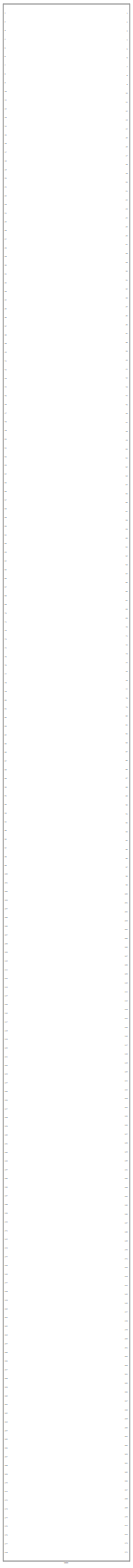
[diagram: root canvas - part 1/1, most of the canvas]
MODEL slx_20ed4016d905
KIND library
CONFIG AbsTol = auto
CONFIG FixedStep = auto
CONFIG MaxStep = auto
CONFIG MinStep = auto
CONFIG RelTol = 1e-3
CONFIG SampleTimeConstraint = Unconstrained
CONFIG Solver = ode45
CONFIG SolverMode = Auto
CONFIG SolverName = ode45
CONFIG StartTime = 0.0
CONFIG StopTime = 10.0
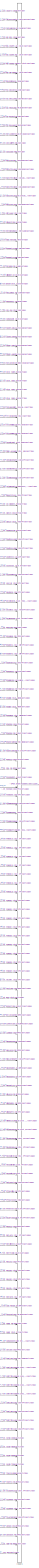
[diagram: cpc5 - part 1/18, left side, full height]
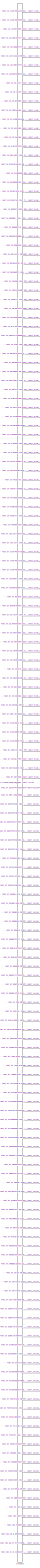
[diagram: cpc5 - part 2/18, right side, full height]
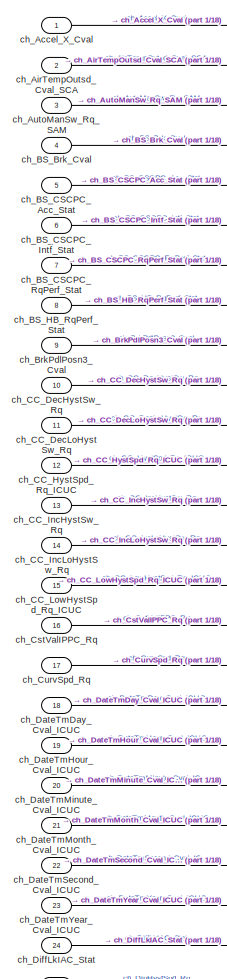
[diagram: cpc5 - part 3/18, top left region]
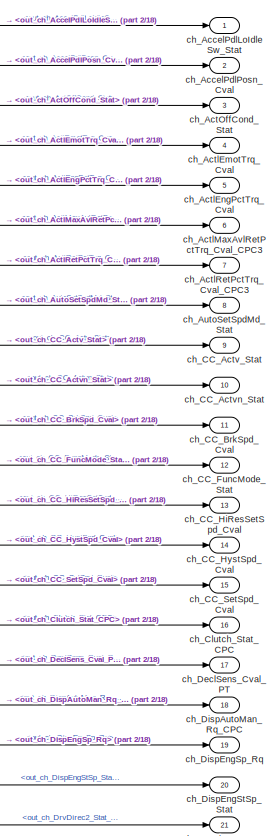
[diagram: cpc5 - part 4/18, top right region]
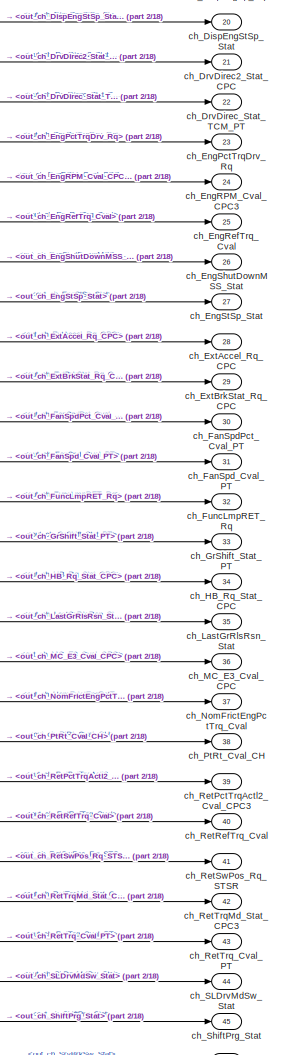
[diagram: cpc5 - part 5/18, top right region]
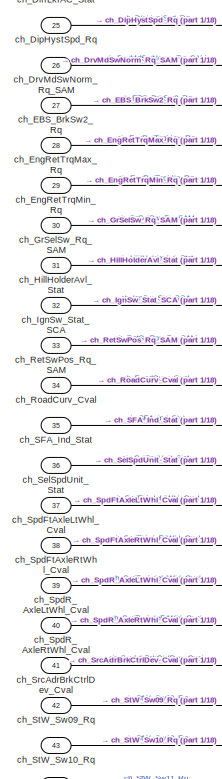
[diagram: cpc5 - part 6/18, top left region]
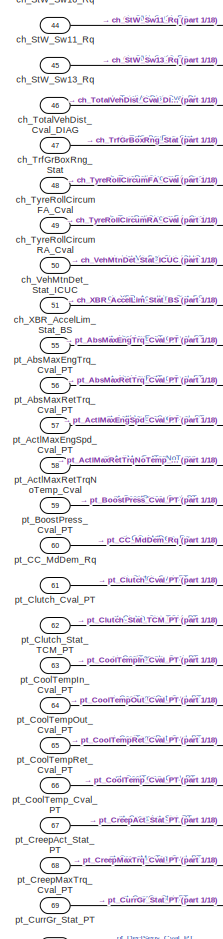
[diagram: cpc5 - part 7/18, top left region]
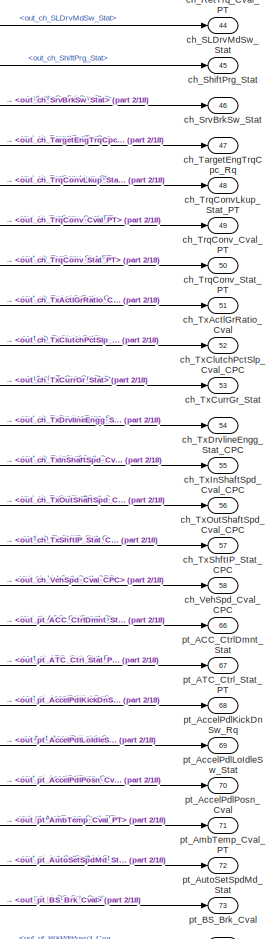
[diagram: cpc5 - part 8/18, top right region]
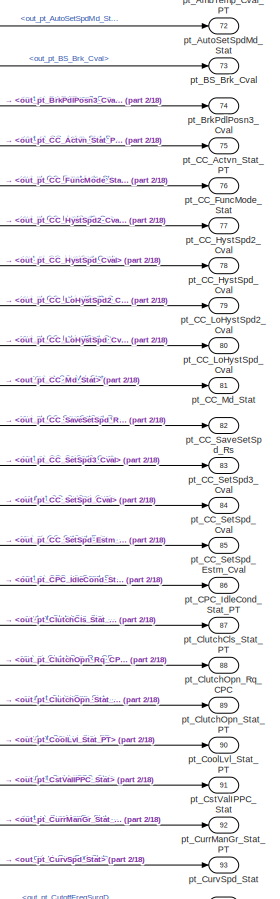
[diagram: cpc5 - part 9/18, middle right region]
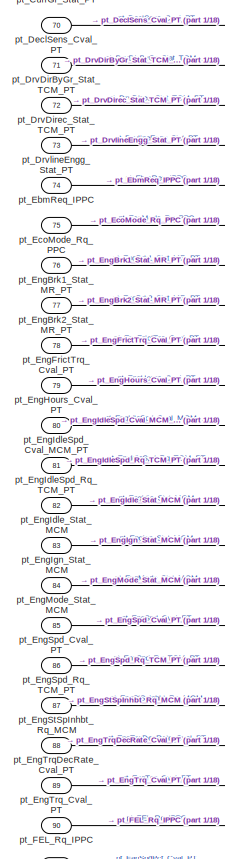
[diagram: cpc5 - part 10/18, middle left region]
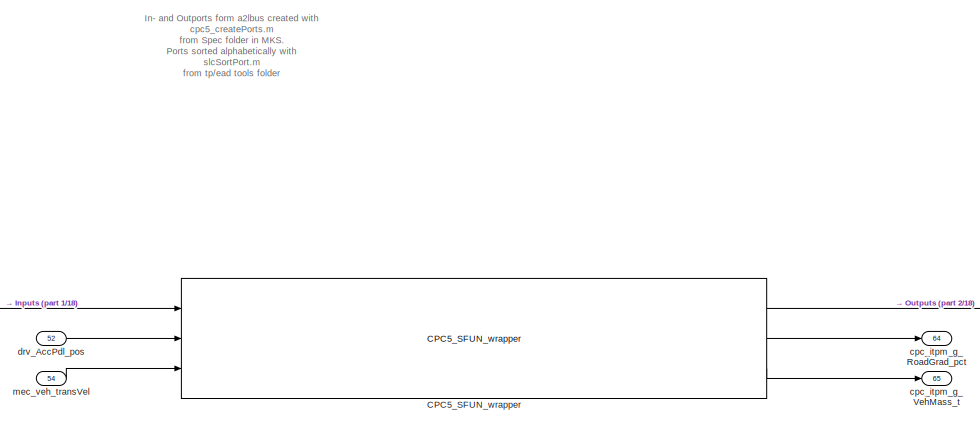
[diagram: cpc5 - part 11/18, central region]
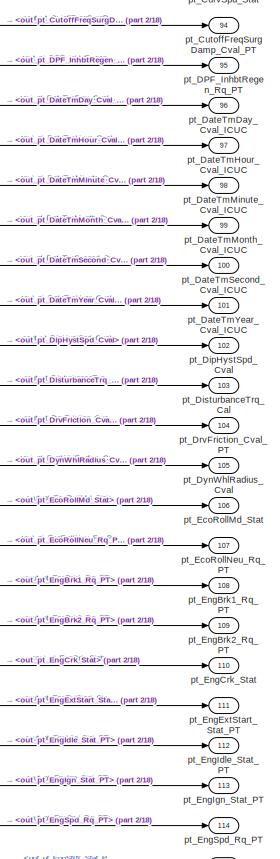
[diagram: cpc5 - part 12/18, middle right region]
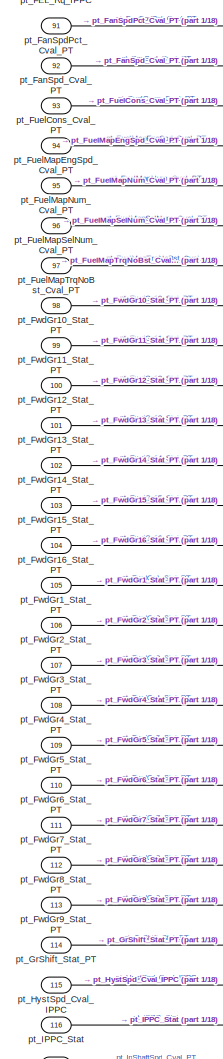
[diagram: cpc5 - part 13/18, middle left region]
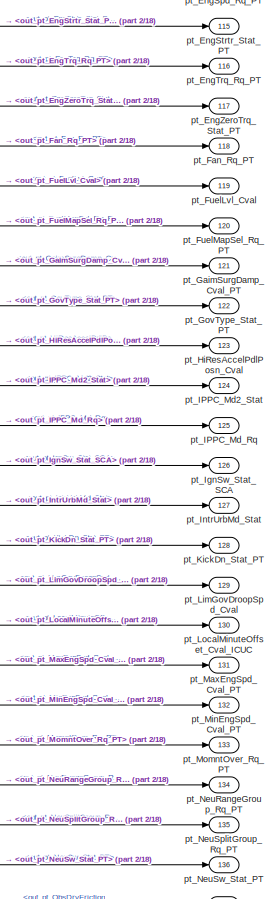
[diagram: cpc5 - part 14/18, bottom right region]
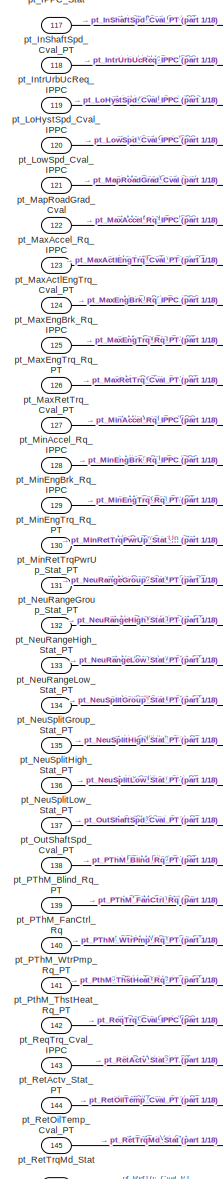
[diagram: cpc5 - part 15/18, bottom left region]
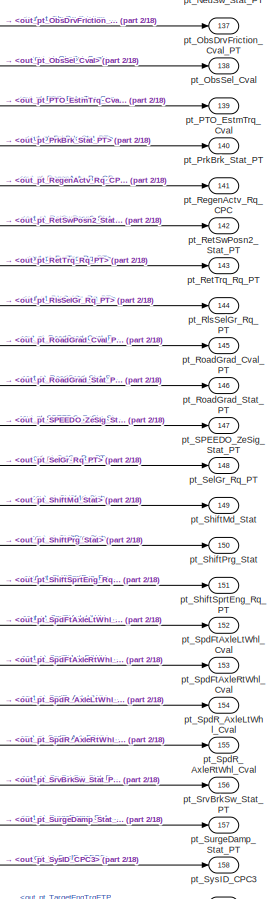
[diagram: cpc5 - part 16/18, bottom right region]
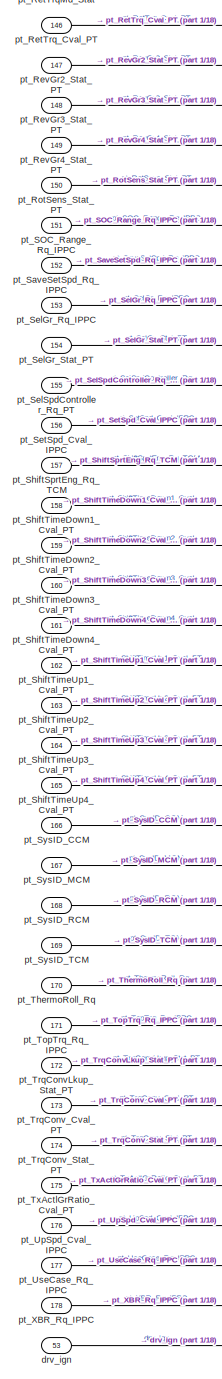
[diagram: cpc5 - part 17/18, bottom left region]
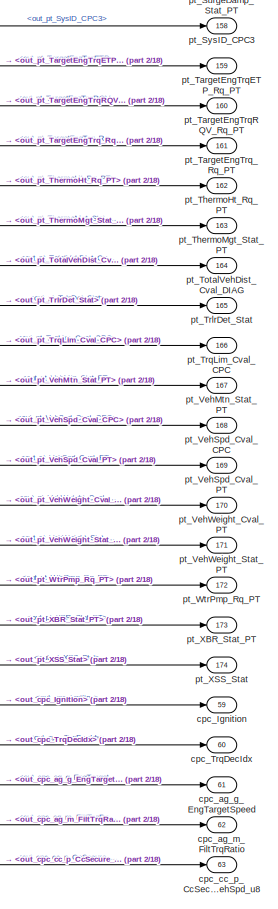
[diagram: cpc5 - part 18/18, bottom right region]
BLOCK [SubSystem] cpc5
  Ports = [178, 174]
  RequestExecContextInheritance = off
  Variant = off
BLOCK [Reference] cpc5/CPC5_SFUN_wrapper  REF=CPC5_SFUN_wrapper/CPC5_SFUN_wrapper
  Ports = [3, 3]
  SourceBlock = CPC5_SFUN_wrapper/CPC5_SFUN_wrapper
BLOCK [BusCreator] cpc5/Inputs
  InheritFromInputs = on
  Inputs = 176
  Ports = [176, 1]
BLOCK [BusSelector] cpc5/Outputs
  OutputSignals = out_ch_AccelPdlLoIdleSw_Stat,out_ch_AccelPdlPosn_Cval,out_ch_ActOffCond_Stat,out_ch_ActlEmotTrq_Cval,out_ch_ActlEngPctTrq_Cval,out_ch_ActlMaxAvlRetPctTrq_Cval_CPC3,out_ch_ActlRetPctTrq_Cval_CPC3,out_ch_AutoSetSpdMd_Stat,out_ch_CC_Actv_Stat,out_ch_CC_Actvn_Stat,out_ch_CC_BrkSpd_Cval,out_ch_CC_FuncMode_Stat,out_ch_CC_HiResSetSpd_Cval,out_ch_CC_HystSpd_Cval,out_ch_CC_SetSpd_Cval,out_ch_Clutch_Stat_CP...<+3794ch>
  Ports = [1, 172]
BLOCK [Outport] cpc5/ch_AccelPdlLoIdleSw_Stat
  IconDisplay = Port number
BLOCK [Outport] cpc5/ch_AccelPdlPosn_Cval
  IconDisplay = Port number
  Port = 2
BLOCK [Inport] cpc5/ch_Accel_X_Cval
  IconDisplay = Port number
BLOCK [Outport] cpc5/ch_ActOffCond_Stat
  IconDisplay = Port number
  Port = 3
BLOCK [Outport] cpc5/ch_ActlEmotTrq_Cval
  IconDisplay = Port number
  Port = 4
BLOCK [Outport] cpc5/ch_ActlEngPctTrq_Cval
  IconDisplay = Port number
  Port = 5
BLOCK [Outport] cpc5/ch_ActlMaxAvlRetPctTrq_Cval_CPC3
  IconDisplay = Port number
  Port = 6
BLOCK [Outport] cpc5/ch_ActlRetPctTrq_Cval_CPC3
  IconDisplay = Port number
  Port = 7
BLOCK [Inport] cpc5/ch_AirTempOutsd_Cval_SCA
  IconDisplay = Port number
  Port = 2
BLOCK [Inport] cpc5/ch_AutoManSw_Rq_SAM
  IconDisplay = Port number
  Port = 3
BLOCK [Outport] cpc5/ch_AutoSetSpdMd_Stat
  IconDisplay = Port number
  Port = 8
BLOCK [Inport] cpc5/ch_BS_Brk_Cval
  IconDisplay = Port number
  Port = 4
BLOCK [Inport] cpc5/ch_BS_CSCPC_Acc_Stat
  IconDisplay = Port number
  Port = 5
BLOCK [Inport] cpc5/ch_BS_CSCPC_Intf_Stat
  IconDisplay = Port number
  Port = 6
BLOCK [Inport] cpc5/ch_BS_CSCPC_RqPerf_Stat
  IconDisplay = Port number
  Port = 7
BLOCK [Inport] cpc5/ch_BS_HB_RqPerf_Stat
  IconDisplay = Port number
  Port = 8
BLOCK [Inport] cpc5/ch_BrkPdlPosn3_Cval
  IconDisplay = Port number
  Port = 9
BLOCK [Outport] cpc5/ch_CC_Actv_Stat
  IconDisplay = Port number
  Port = 9
BLOCK [Outport] cpc5/ch_CC_Actvn_Stat
  IconDisplay = Port number
  Port = 10
BLOCK [Outport] cpc5/ch_CC_BrkSpd_Cval
  IconDisplay = Port number
  Port = 11
BLOCK [Inport] cpc5/ch_CC_DecHystSw_Rq
  IconDisplay = Port number
  Port = 10
BLOCK [Inport] cpc5/ch_CC_DecLoHystSw_Rq
  IconDisplay = Port number
  Port = 11
BLOCK [Outport] cpc5/ch_CC_FuncMode_Stat
  IconDisplay = Port number
  Port = 12
BLOCK [Outport] cpc5/ch_CC_HiResSetSpd_Cval
  IconDisplay = Port number
  Port = 13
BLOCK [Outport] cpc5/ch_CC_HystSpd_Cval
  IconDisplay = Port number
  Port = 14
BLOCK [Inport] cpc5/ch_CC_HystSpd_Rq_ICUC
  IconDisplay = Port number
  Port = 12
BLOCK [Inport] cpc5/ch_CC_IncHystSw_Rq
  IconDisplay = Port number
  Port = 13
BLOCK [Inport] cpc5/ch_CC_IncLoHystSw_Rq
  IconDisplay = Port number
  Port = 14
BLOCK [Inport] cpc5/ch_CC_LowHystSpd_Rq_ICUC
  IconDisplay = Port number
  Port = 15
BLOCK [Outport] cpc5/ch_CC_SetSpd_Cval
  IconDisplay = Port number
  Port = 15
BLOCK [Outport] cpc5/ch_Clutch_Stat_CPC
  IconDisplay = Port number
  Port = 16
BLOCK [Inport] cpc5/ch_CstValIPPC_Rq
  IconDisplay = Port number
  Port = 16
BLOCK [Inport] cpc5/ch_CurvSpd_Rq
  IconDisplay = Port number
  Port = 17
BLOCK [Inport] cpc5/ch_DateTmDay_Cval_ICUC
  IconDisplay = Port number
  Port = 18
BLOCK [Inport] cpc5/ch_DateTmHour_Cval_ICUC
  IconDisplay = Port number
  Port = 19
BLOCK [Inport] cpc5/ch_DateTmMinute_Cval_ICUC
  IconDisplay = Port number
  Port = 20
BLOCK [Inport] cpc5/ch_DateTmMonth_Cval_ICUC
  IconDisplay = Port number
  Port = 21
BLOCK [Inport] cpc5/ch_DateTmSecond_Cval_ICUC
  IconDisplay = Port number
  Port = 22
BLOCK [Inport] cpc5/ch_DateTmYear_Cval_ICUC
  IconDisplay = Port number
  Port = 23
BLOCK [Outport] cpc5/ch_DeclSens_Cval_PT
  IconDisplay = Port number
  Port = 17
BLOCK [Inport] cpc5/ch_DiffLkIAC_Stat
  IconDisplay = Port number
  Port = 24
BLOCK [Inport] cpc5/ch_DipHystSpd_Rq
  IconDisplay = Port number
  Port = 25
BLOCK [Outport] cpc5/ch_DispAutoMan_Rq_CPC
  IconDisplay = Port number
  Port = 18
BLOCK [Outport] cpc5/ch_DispEngSp_Rq
  IconDisplay = Port number
  Port = 19
BLOCK [Outport] cpc5/ch_DispEngStSp_Stat
  IconDisplay = Port number
  Port = 20
BLOCK [Outport] cpc5/ch_DrvDirec2_Stat_CPC
  IconDisplay = Port number
  Port = 21
BLOCK [Outport] cpc5/ch_DrvDirec_Stat_TCM_PT
  IconDisplay = Port number
  Port = 22
BLOCK [Inport] cpc5/ch_DrvMdSwNorm_Rq_SAM
  IconDisplay = Port number
  Port = 26
BLOCK [Inport] cpc5/ch_EBS_BrkSw2_Rq
  IconDisplay = Port number
  Port = 27
BLOCK [Outport] cpc5/ch_EngPctTrqDrv_Rq
  IconDisplay = Port number
  Port = 23
BLOCK [Outport] cpc5/ch_EngRPM_Cval_CPC3
  IconDisplay = Port number
  Port = 24
BLOCK [Outport] cpc5/ch_EngRefTrq_Cval
  IconDisplay = Port number
  Port = 25
BLOCK [Inport] cpc5/ch_EngRetTrqMax_Rq
  IconDisplay = Port number
  Port = 28
BLOCK [Inport] cpc5/ch_EngRetTrqMin_Rq
  IconDisplay = Port number
  Port = 29
BLOCK [Outport] cpc5/ch_EngShutDownMSS_Stat
  IconDisplay = Port number
  Port = 26
BLOCK [Outport] cpc5/ch_EngStSp_Stat
  IconDisplay = Port number
  Port = 27
BLOCK [Outport] cpc5/ch_ExtAccel_Rq_CPC
  IconDisplay = Port number
  Port = 28
BLOCK [Outport] cpc5/ch_ExtBrkStat_Rq_CPC
  IconDisplay = Port number
  Port = 29
BLOCK [Outport] cpc5/ch_FanSpdPct_Cval_PT
  IconDisplay = Port number
  Port = 30
BLOCK [Outport] cpc5/ch_FanSpd_Cval_PT
  IconDisplay = Port number
  Port = 31
BLOCK [Outport] cpc5/ch_FuncLmpRET_Rq
  IconDisplay = Port number
  Port = 32
BLOCK [Inport] cpc5/ch_GrSelSw_Rq_SAM
  IconDisplay = Port number
  Port = 30
BLOCK [Outport] cpc5/ch_GrShift_Stat_PT
  IconDisplay = Port number
  Port = 33
BLOCK [Outport] cpc5/ch_HB_Rq_Stat_CPC
  IconDisplay = Port number
  Port = 34
BLOCK [Inport] cpc5/ch_HillHolderAvl_Stat
  IconDisplay = Port number
  Port = 31
BLOCK [Inport] cpc5/ch_IgnSw_Stat_SCA
  IconDisplay = Port number
  Port = 32
BLOCK [Outport] cpc5/ch_LastGrRlsRsn_Stat
  IconDisplay = Port number
  Port = 35
BLOCK [Outport] cpc5/ch_MC_E3_Cval_CPC
  IconDisplay = Port number
  Port = 36
BLOCK [Outport] cpc5/ch_NomFrictEngPctTrq_Cval
  IconDisplay = Port number
  Port = 37
BLOCK [Outport] cpc5/ch_PtRt_Cval_CH
  IconDisplay = Port number
  Port = 38
BLOCK [Outport] cpc5/ch_RetPctTrqActl2_Cval_CPC3
  IconDisplay = Port number
  Port = 39
BLOCK [Outport] cpc5/ch_RetRefTrq_Cval
  IconDisplay = Port number
  Port = 40
BLOCK [Inport] cpc5/ch_RetSwPos_Rq_SAM
  IconDisplay = Port number
  Port = 33
BLOCK [Outport] cpc5/ch_RetSwPos_Rq_STSR
  IconDisplay = Port number
  Port = 41
BLOCK [Outport] cpc5/ch_RetTrqMd_Stat_CPC3
  IconDisplay = Port number
  Port = 42
BLOCK [Outport] cpc5/ch_RetTrq_Cval_PT
  IconDisplay = Port number
  Port = 43
BLOCK [Inport] cpc5/ch_RoadCurv_Cval
  IconDisplay = Port number
  Port = 34
BLOCK [Inport] cpc5/ch_SFA_Ind_Stat
  IconDisplay = Port number
  Port = 35
BLOCK [Outport] cpc5/ch_SLDrvMdSw_Stat
  IconDisplay = Port number
  Port = 44
BLOCK [Inport] cpc5/ch_SelSpdUnit_Stat
  IconDisplay = Port number
  Port = 36
BLOCK [Outport] cpc5/ch_ShiftPrg_Stat
  IconDisplay = Port number
  Port = 45
BLOCK [Inport] cpc5/ch_SpdFtAxleLtWhl_Cval
  IconDisplay = Port number
  Port = 37
BLOCK [Inport] cpc5/ch_SpdFtAxleRtWhl_Cval
  IconDisplay = Port number
  Port = 38
BLOCK [Inport] cpc5/ch_SpdR_AxleLtWhl_Cval
  IconDisplay = Port number
  Port = 39
BLOCK [Inport] cpc5/ch_SpdR_AxleRtWhl_Cval
  IconDisplay = Port number
  Port = 40
BLOCK [Inport] cpc5/ch_SrcAdrBrkCtrlDev_Cval
  IconDisplay = Port number
  Port = 41
BLOCK [Outport] cpc5/ch_SrvBrkSw_Stat
  IconDisplay = Port number
  Port = 46
BLOCK [Inport] cpc5/ch_StW_Sw09_Rq
  IconDisplay = Port number
  Port = 42
BLOCK [Inport] cpc5/ch_StW_Sw10_Rq
  IconDisplay = Port number
  Port = 43
BLOCK [Inport] cpc5/ch_StW_Sw11_Rq
  IconDisplay = Port number
  Port = 44
BLOCK [Inport] cpc5/ch_StW_Sw13_Rq
  IconDisplay = Port number
  Port = 45
BLOCK [Outport] cpc5/ch_TargetEngTrqCpc_Rq
  IconDisplay = Port number
  Port = 47
BLOCK [Inport] cpc5/ch_TotalVehDist_Cval_DIAG
  IconDisplay = Port number
  Port = 46
BLOCK [Inport] cpc5/ch_TrfGrBoxRng_Stat
  IconDisplay = Port number
  Port = 47
BLOCK [Outport] cpc5/ch_TrqConvLkup_Stat_PT
  IconDisplay = Port number
  Port = 48
BLOCK [Outport] cpc5/ch_TrqConv_Cval_PT
  IconDisplay = Port number
  Port = 49
BLOCK [Outport] cpc5/ch_TrqConv_Stat_PT
  IconDisplay = Port number
  Port = 50
BLOCK [Outport] cpc5/ch_TxActlGrRatio_Cval
  IconDisplay = Port number
  Port = 51
BLOCK [Outport] cpc5/ch_TxClutchPctSlp_Cval_CPC
  IconDisplay = Port number
  Port = 52
BLOCK [Outport] cpc5/ch_TxCurrGr_Stat
  IconDisplay = Port number
  Port = 53
BLOCK [Outport] cpc5/ch_TxDrvlineEngg_Stat_CPC
  IconDisplay = Port number
  Port = 54
BLOCK [Outport] cpc5/ch_TxInShaftSpd_Cval_CPC
  IconDisplay = Port number
  Port = 55
BLOCK [Outport] cpc5/ch_TxOutShaftSpd_Cval_CPC
  IconDisplay = Port number
  Port = 56
BLOCK [Outport] cpc5/ch_TxShftIP_Stat_CPC
  IconDisplay = Port number
  Port = 57
BLOCK [Inport] cpc5/ch_TyreRollCircumFA_Cval
  IconDisplay = Port number
  Port = 48
BLOCK [Inport] cpc5/ch_TyreRollCircumRA_Cval
  IconDisplay = Port number
  Port = 49
BLOCK [Inport] cpc5/ch_VehMtnDet_Stat_ICUC
  IconDisplay = Port number
  Port = 50
BLOCK [Outport] cpc5/ch_VehSpd_Cval_CPC
  IconDisplay = Port number
  Port = 58
BLOCK [Inport] cpc5/ch_XBR_AccelLim_Stat_BS
  IconDisplay = Port number
  Port = 51
BLOCK [Outport] cpc5/cpc_Ignition
  IconDisplay = Port number
  Port = 59
BLOCK [Outport] cpc5/cpc_TrqDecIdx
  IconDisplay = Port number
  Port = 60
BLOCK [Outport] cpc5/cpc_ag_g_EngTargetSpeed
  IconDisplay = Port number
  Port = 61
BLOCK [Outport] cpc5/cpc_ag_m_FiltTrqRatio
  IconDisplay = Port number
  Port = 62
BLOCK [Outport] cpc5/cpc_cc_p_CcSecure_LowSwitchOnVehSpd_u8
  IconDisplay = Port number
  Port = 63
BLOCK [Outport] cpc5/cpc_itpm_g_RoadGrad_pct
  IconDisplay = Port number
  Port = 64
BLOCK [Outport] cpc5/cpc_itpm_g_VehMass_t
  IconDisplay = Port number
  Port = 65
BLOCK [Inport] cpc5/drv_AccPdl_pos
  IconDisplay = Port number
  Port = 52
BLOCK [Inport] cpc5/drv_ign
  IconDisplay = Port number
  Port = 53
BLOCK [Inport] cpc5/mec_veh_transVel
  IconDisplay = Port number
  Port = 54
BLOCK [Outport] cpc5/pt_ACC_CtrlDmnt_Stat
  IconDisplay = Port number
  Port = 66
BLOCK [Outport] cpc5/pt_ATC_Ctrl_Stat_PT
  IconDisplay = Port number
  Port = 67
BLOCK [Inport] cpc5/pt_AbsMaxEngTrq_Cval_PT
  IconDisplay = Port number
  Port = 55
BLOCK [Inport] cpc5/pt_AbsMaxRetTrq_Cval_PT
  IconDisplay = Port number
  Port = 56
BLOCK [Outport] cpc5/pt_AccelPdlKickDnSw_Rq
  IconDisplay = Port number
  Port = 68
BLOCK [Outport] cpc5/pt_AccelPdlLoIdleSw_Stat
  IconDisplay = Port number
  Port = 69
BLOCK [Outport] cpc5/pt_AccelPdlPosn_Cval
  IconDisplay = Port number
  Port = 70
BLOCK [Inport] cpc5/pt_ActlMaxEngSpd_Cval_PT
  IconDisplay = Port number
  Port = 57
BLOCK [Inport] cpc5/pt_ActlMaxRetTrqNoTemp_Cval
  IconDisplay = Port number
  Port = 58
BLOCK [Outport] cpc5/pt_AmbTemp_Cval_PT
  IconDisplay = Port number
  Port = 71
BLOCK [Outport] cpc5/pt_AutoSetSpdMd_Stat
  IconDisplay = Port number
  Port = 72
BLOCK [Outport] cpc5/pt_BS_Brk_Cval
  IconDisplay = Port number
  Port = 73
BLOCK [Inport] cpc5/pt_BoostPress_Cval_PT
  IconDisplay = Port number
  Port = 59
BLOCK [Outport] cpc5/pt_BrkPdlPosn3_Cval
  IconDisplay = Port number
  Port = 74
BLOCK [Outport] cpc5/pt_CC_Actvn_Stat_PT
  IconDisplay = Port number
  Port = 75
BLOCK [Outport] cpc5/pt_CC_FuncMode_Stat
  IconDisplay = Port number
  Port = 76
BLOCK [Outport] cpc5/pt_CC_HystSpd2_Cval
  IconDisplay = Port number
  Port = 77
BLOCK [Outport] cpc5/pt_CC_HystSpd_Cval
  IconDisplay = Port number
  Port = 78
BLOCK [Outport] cpc5/pt_CC_LoHystSpd2_Cval
  IconDisplay = Port number
  Port = 79
BLOCK [Outport] cpc5/pt_CC_LoHystSpd_Cval
  IconDisplay = Port number
  Port = 80
BLOCK [Inport] cpc5/pt_CC_MdDem_Rq
  IconDisplay = Port number
  Port = 60
BLOCK [Outport] cpc5/pt_CC_Md_Stat
  IconDisplay = Port number
  Port = 81
BLOCK [Outport] cpc5/pt_CC_SaveSetSpd_Rs
  IconDisplay = Port number
  Port = 82
BLOCK [Outport] cpc5/pt_CC_SetSpd3_Cval
  IconDisplay = Port number
  Port = 83
BLOCK [Outport] cpc5/pt_CC_SetSpd_Cval
  IconDisplay = Port number
  Port = 84
BLOCK [Outport] cpc5/pt_CC_SetSpd_Estm_Cval
  IconDisplay = Port number
  Port = 85
BLOCK [Outport] cpc5/pt_CPC_IdleCond_Stat_PT
  IconDisplay = Port number
  Port = 86
BLOCK [Outport] cpc5/pt_ClutchCls_Stat_PT
  IconDisplay = Port number
  Port = 87
BLOCK [Outport] cpc5/pt_ClutchOpn_Rq_CPC
  IconDisplay = Port number
  Port = 88
BLOCK [Outport] cpc5/pt_ClutchOpn_Stat_PT
  IconDisplay = Port number
  Port = 89
BLOCK [Inport] cpc5/pt_Clutch_Cval_PT
  IconDisplay = Port number
  Port = 61
BLOCK [Inport] cpc5/pt_Clutch_Stat_TCM_PT
  IconDisplay = Port number
  Port = 62
BLOCK [Outport] cpc5/pt_CoolLvl_Stat_PT
  IconDisplay = Port number
  Port = 90
BLOCK [Inport] cpc5/pt_CoolTempIn_Cval_PT
  IconDisplay = Port number
  Port = 63
BLOCK [Inport] cpc5/pt_CoolTempOut_Cval_PT
  IconDisplay = Port number
  Port = 64
BLOCK [Inport] cpc5/pt_CoolTempRet_Cval_PT
  IconDisplay = Port number
  Port = 65
BLOCK [Inport] cpc5/pt_CoolTemp_Cval_PT
  IconDisplay = Port number
  Port = 66
BLOCK [Inport] cpc5/pt_CreepAct_Stat_PT
  IconDisplay = Port number
  Port = 67
BLOCK [Inport] cpc5/pt_CreepMaxTrq_Cval_PT
  IconDisplay = Port number
  Port = 68
BLOCK [Outport] cpc5/pt_CstValIPPC_Stat
  IconDisplay = Port number
  Port = 91
BLOCK [Inport] cpc5/pt_CurrGr_Stat_PT
  IconDisplay = Port number
  Port = 69
BLOCK [Outport] cpc5/pt_CurrManGr_Stat_PT
  IconDisplay = Port number
  Port = 92
BLOCK [Outport] cpc5/pt_CurvSpd_Stat
  IconDisplay = Port number
  Port = 93
BLOCK [Outport] cpc5/pt_CutoffFreqSurgDamp_Cval_PT
  IconDisplay = Port number
  Port = 94
BLOCK [Outport] cpc5/pt_DPF_InhbtRegen_Rq_PT
  IconDisplay = Port number
  Port = 95
BLOCK [Outport] cpc5/pt_DateTmDay_Cval_ICUC
  IconDisplay = Port number
  Port = 96
BLOCK [Outport] cpc5/pt_DateTmHour_Cval_ICUC
  IconDisplay = Port number
  Port = 97
BLOCK [Outport] cpc5/pt_DateTmMinute_Cval_ICUC
  IconDisplay = Port number
  Port = 98
BLOCK [Outport] cpc5/pt_DateTmMonth_Cval_ICUC
  IconDisplay = Port number
  Port = 99
BLOCK [Outport] cpc5/pt_DateTmSecond_Cval_ICUC
  IconDisplay = Port number
  Port = 100
BLOCK [Outport] cpc5/pt_DateTmYear_Cval_ICUC
  IconDisplay = Port number
  Port = 101
BLOCK [Inport] cpc5/pt_DeclSens_Cval_PT
  IconDisplay = Port number
  Port = 70
BLOCK [Outport] cpc5/pt_DipHystSpd_Cval
  IconDisplay = Port number
  Port = 102
BLOCK [Outport] cpc5/pt_DisturbanceTrq_Cal
  IconDisplay = Port number
  Port = 103
BLOCK [Inport] cpc5/pt_DrvDirByGr_Stat_TCM_PT
  IconDisplay = Port number
  Port = 71
BLOCK [Inport] cpc5/pt_DrvDirec_Stat_TCM_PT
  IconDisplay = Port number
  Port = 72
BLOCK [Outport] cpc5/pt_DrvFriction_Cval_PT
  IconDisplay = Port number
  Port = 104
BLOCK [Inport] cpc5/pt_DrvlineEngg_Stat_PT
  IconDisplay = Port number
  Port = 73
BLOCK [Outport] cpc5/pt_DynWhlRadius_Cval
  IconDisplay = Port number
  Port = 105
BLOCK [Inport] cpc5/pt_EbmReq_IPPC
  IconDisplay = Port number
  Port = 74
BLOCK [Inport] cpc5/pt_EcoMode_Rq_PPC
  IconDisplay = Port number
  Port = 75
BLOCK [Outport] cpc5/pt_EcoRollMd_Stat
  IconDisplay = Port number
  Port = 106
BLOCK [Outport] cpc5/pt_EcoRollNeu_Rq_PT
  IconDisplay = Port number
  Port = 107
BLOCK [Outport] cpc5/pt_EngBrk1_Rq_PT
  IconDisplay = Port number
  Port = 108
BLOCK [Inport] cpc5/pt_EngBrk1_Stat_MR_PT
  IconDisplay = Port number
  Port = 76
BLOCK [Outport] cpc5/pt_EngBrk2_Rq_PT
  IconDisplay = Port number
  Port = 109
BLOCK [Inport] cpc5/pt_EngBrk2_Stat_MR_PT
  IconDisplay = Port number
  Port = 77
BLOCK [Outport] cpc5/pt_EngCrk_Stat
  IconDisplay = Port number
  Port = 110
BLOCK [Outport] cpc5/pt_EngExtStart_Stat_PT
  IconDisplay = Port number
  Port = 111
BLOCK [Inport] cpc5/pt_EngFrictTrq_Cval_PT
  IconDisplay = Port number
  Port = 78
BLOCK [Inport] cpc5/pt_EngHours_Cval_PT
  IconDisplay = Port number
  Port = 79
BLOCK [Inport] cpc5/pt_EngIdleSpd_Cval_MCM_PT
  IconDisplay = Port number
  Port = 80
BLOCK [Inport] cpc5/pt_EngIdleSpd_Rq_TCM_PT
  IconDisplay = Port number
  Port = 81
BLOCK [Inport] cpc5/pt_EngIdle_Stat_MCM
  IconDisplay = Port number
  Port = 82
BLOCK [Outport] cpc5/pt_EngIdle_Stat_PT
  IconDisplay = Port number
  Port = 112
BLOCK [Inport] cpc5/pt_EngIgn_Stat_MCM
  IconDisplay = Port number
  Port = 83
BLOCK [Outport] cpc5/pt_EngIgn_Stat_PT
  IconDisplay = Port number
  Port = 113
BLOCK [Inport] cpc5/pt_EngMode_Stat_MCM
  IconDisplay = Port number
  Port = 84
BLOCK [Inport] cpc5/pt_EngSpd_Cval_PT
  IconDisplay = Port number
  Port = 85
BLOCK [Outport] cpc5/pt_EngSpd_Rq_PT
  IconDisplay = Port number
  Port = 114
BLOCK [Inport] cpc5/pt_EngSpd_Rq_TCM_PT
  IconDisplay = Port number
  Port = 86
BLOCK [Inport] cpc5/pt_EngStSpInhbt_Rq_MCM
  IconDisplay = Port number
  Port = 87
BLOCK [Outport] cpc5/pt_EngStrtr_Stat_PT
  IconDisplay = Port number
  Port = 115
BLOCK [Inport] cpc5/pt_EngTrqDecRate_Cval_PT
  IconDisplay = Port number
  Port = 88
BLOCK [Inport] cpc5/pt_EngTrq_Cval_PT
  IconDisplay = Port number
  Port = 89
BLOCK [Outport] cpc5/pt_EngTrq_Rq_PT
  IconDisplay = Port number
  Port = 116
BLOCK [Outport] cpc5/pt_EngZeroTrq_Stat_PT
  IconDisplay = Port number
  Port = 117
BLOCK [Inport] cpc5/pt_FEL_Rq_IPPC
  IconDisplay = Port number
  Port = 90
BLOCK [Inport] cpc5/pt_FanSpdPct_Cval_PT
  IconDisplay = Port number
  Port = 91
BLOCK [Inport] cpc5/pt_FanSpd_Cval_PT
  IconDisplay = Port number
  Port = 92
BLOCK [Outport] cpc5/pt_Fan_Rq_PT
  IconDisplay = Port number
  Port = 118
BLOCK [Inport] cpc5/pt_FuelCons_Cval_PT
  IconDisplay = Port number
  Port = 93
BLOCK [Outport] cpc5/pt_FuelLvl_Cval
  IconDisplay = Port number
  Port = 119
BLOCK [Inport] cpc5/pt_FuelMapEngSpd_Cval_PT
  IconDisplay = Port number
  Port = 94
BLOCK [Inport] cpc5/pt_FuelMapNum_Cval_PT
  IconDisplay = Port number
  Port = 95
BLOCK [Inport] cpc5/pt_FuelMapSelNum_Cval_PT
  IconDisplay = Port number
  Port = 96
BLOCK [Outport] cpc5/pt_FuelMapSel_Rq_PT
  IconDisplay = Port number
  Port = 120
BLOCK [Inport] cpc5/pt_FuelMapTrqNoBst_Cval_PT
  IconDisplay = Port number
  Port = 97
BLOCK [Inport] cpc5/pt_FwdGr10_Stat_PT
  IconDisplay = Port number
  Port = 98
BLOCK [Inport] cpc5/pt_FwdGr11_Stat_PT
  IconDisplay = Port number
  Port = 99
BLOCK [Inport] cpc5/pt_FwdGr12_Stat_PT
  IconDisplay = Port number
  Port = 100
BLOCK [Inport] cpc5/pt_FwdGr13_Stat_PT
  IconDisplay = Port number
  Port = 101
BLOCK [Inport] cpc5/pt_FwdGr14_Stat_PT
  IconDisplay = Port number
  Port = 102
BLOCK [Inport] cpc5/pt_FwdGr15_Stat_PT
  IconDisplay = Port number
  Port = 103
BLOCK [Inport] cpc5/pt_FwdGr16_Stat_PT
  IconDisplay = Port number
  Port = 104
BLOCK [Inport] cpc5/pt_FwdGr1_Stat_PT
  IconDisplay = Port number
  Port = 105
BLOCK [Inport] cpc5/pt_FwdGr2_Stat_PT
  IconDisplay = Port number
  Port = 106
BLOCK [Inport] cpc5/pt_FwdGr3_Stat_PT
  IconDisplay = Port number
  Port = 107
BLOCK [Inport] cpc5/pt_FwdGr4_Stat_PT
  IconDisplay = Port number
  Port = 108
BLOCK [Inport] cpc5/pt_FwdGr5_Stat_PT
  IconDisplay = Port number
  Port = 109
BLOCK [Inport] cpc5/pt_FwdGr6_Stat_PT
  IconDisplay = Port number
  Port = 110
BLOCK [Inport] cpc5/pt_FwdGr7_Stat_PT
  IconDisplay = Port number
  Port = 111
BLOCK [Inport] cpc5/pt_FwdGr8_Stat_PT
  IconDisplay = Port number
  Port = 112
BLOCK [Inport] cpc5/pt_FwdGr9_Stat_PT
  IconDisplay = Port number
  Port = 113
BLOCK [Outport] cpc5/pt_GaimSurgDamp_Cval_PT
  IconDisplay = Port number
  Port = 121
BLOCK [Outport] cpc5/pt_GovType_Stat_PT
  IconDisplay = Port number
  Port = 122
BLOCK [Inport] cpc5/pt_GrShift_Stat_PT
  IconDisplay = Port number
  Port = 114
BLOCK [Outport] cpc5/pt_HiResAccelPdlPosn_Cval
  IconDisplay = Port number
  Port = 123
BLOCK [Inport] cpc5/pt_HystSpd_Cval_IPPC
  IconDisplay = Port number
  Port = 115
BLOCK [Outport] cpc5/pt_IPPC_Md2_Stat
  IconDisplay = Port number
  Port = 124
BLOCK [Outport] cpc5/pt_IPPC_Md_Rq
  IconDisplay = Port number
  Port = 125
BLOCK [Inport] cpc5/pt_IPPC_Stat
  IconDisplay = Port number
  Port = 116
BLOCK [Outport] cpc5/pt_IgnSw_Stat_SCA
  IconDisplay = Port number
  Port = 126
BLOCK [Inport] cpc5/pt_InShaftSpd_Cval_PT
  IconDisplay = Port number
  Port = 117
BLOCK [Outport] cpc5/pt_IntrUrbMd_Stat
  IconDisplay = Port number
  Port = 127
BLOCK [Inport] cpc5/pt_IntrUrbUcReq_IPPC
  IconDisplay = Port number
  Port = 118
BLOCK [Outport] cpc5/pt_KickDn_Stat_PT
  IconDisplay = Port number
  Port = 128
BLOCK [Outport] cpc5/pt_LimGovDroopSpd_Cval
  IconDisplay = Port number
  Port = 129
BLOCK [Inport] cpc5/pt_LoHystSpd_Cval_IPPC
  IconDisplay = Port number
  Port = 119
BLOCK [Outport] cpc5/pt_LocalMinuteOffset_Cval_ICUC
  IconDisplay = Port number
  Port = 130
BLOCK [Inport] cpc5/pt_LowSpd_Cval_IPPC
  IconDisplay = Port number
  Port = 120
BLOCK [Inport] cpc5/pt_MapRoadGrad_Cval
  IconDisplay = Port number
  Port = 121
BLOCK [Inport] cpc5/pt_MaxAccel_Rq_IPPC
  IconDisplay = Port number
  Port = 122
BLOCK [Inport] cpc5/pt_MaxActlEngTrq_Cval_PT
  IconDisplay = Port number
  Port = 123
BLOCK [Inport] cpc5/pt_MaxEngBrk_Rq_IPPC
  IconDisplay = Port number
  Port = 124
BLOCK [Outport] cpc5/pt_MaxEngSpd_Cval_PT
  IconDisplay = Port number
  Port = 131
BLOCK [Inport] cpc5/pt_MaxEngTrq_Rq_PT
  IconDisplay = Port number
  Port = 125
BLOCK [Inport] cpc5/pt_MaxRetTrq_Cval_PT
  IconDisplay = Port number
  Port = 126
BLOCK [Inport] cpc5/pt_MinAccel_Rq_IPPC
  IconDisplay = Port number
  Port = 127
BLOCK [Inport] cpc5/pt_MinEngBrk_Rq_IPPC
  IconDisplay = Port number
  Port = 128
BLOCK [Outport] cpc5/pt_MinEngSpd_Cval_PT
  IconDisplay = Port number
  Port = 132
BLOCK [Inport] cpc5/pt_MinEngTrq_Rq_PT
  IconDisplay = Port number
  Port = 129
BLOCK [Inport] cpc5/pt_MinRetTrqPwrUp_Stat_PT
  IconDisplay = Port number
  Port = 130
BLOCK [Outport] cpc5/pt_MomntOver_Rq_PT
  IconDisplay = Port number
  Port = 133
BLOCK [Outport] cpc5/pt_NeuRangeGroup_Rq_PT
  IconDisplay = Port number
  Port = 134
BLOCK [Inport] cpc5/pt_NeuRangeGroup_Stat_PT
  IconDisplay = Port number
  Port = 131
BLOCK [Inport] cpc5/pt_NeuRangeHigh_Stat_PT
  IconDisplay = Port number
  Port = 132
BLOCK [Inport] cpc5/pt_NeuRangeLow_Stat_PT
  IconDisplay = Port number
  Port = 133
BLOCK [Outport] cpc5/pt_NeuSplitGroup_Rq_PT
  IconDisplay = Port number
  Port = 135
BLOCK [Inport] cpc5/pt_NeuSplitGroup_Stat_PT
  IconDisplay = Port number
  Port = 134
BLOCK [Inport] cpc5/pt_NeuSplitHigh_Stat_PT
  IconDisplay = Port number
  Port = 135
BLOCK [Inport] cpc5/pt_NeuSplitLow_Stat_PT
  IconDisplay = Port number
  Port = 136
BLOCK [Outport] cpc5/pt_NeuSw_Stat_PT
  IconDisplay = Port number
  Port = 136
BLOCK [Outport] cpc5/pt_ObsDrvFriction_Cval_PT
  IconDisplay = Port number
  Port = 137
BLOCK [Outport] cpc5/pt_ObsSel_Cval
  IconDisplay = Port number
  Port = 138
BLOCK [Inport] cpc5/pt_OutShaftSpd_Cval_PT
  IconDisplay = Port number
  Port = 137
BLOCK [Outport] cpc5/pt_PTO_EstmTrq_Cval
  IconDisplay = Port number
  Port = 139
BLOCK [Inport] cpc5/pt_PThM_Blind_Rq_PT
  IconDisplay = Port number
  Port = 138
BLOCK [Inport] cpc5/pt_PThM_FanCtrl_Rq
  IconDisplay = Port number
  Port = 139
BLOCK [Inport] cpc5/pt_PThM_WtrPmp_Rq_PT
  IconDisplay = Port number
  Port = 140
BLOCK [Outport] cpc5/pt_PrkBrk_Stat_PT
  IconDisplay = Port number
  Port = 140
BLOCK [Inport] cpc5/pt_PthM_ThstHeat_Rq_PT
  IconDisplay = Port number
  Port = 141
BLOCK [Outport] cpc5/pt_RegenActv_Rq_CPC
  IconDisplay = Port number
  Port = 141
BLOCK [Inport] cpc5/pt_ReqTrq_Cval_IPPC
  IconDisplay = Port number
  Port = 142
BLOCK [Inport] cpc5/pt_RetActv_Stat_PT
  IconDisplay = Port number
  Port = 143
BLOCK [Inport] cpc5/pt_RetOilTemp_Cval_PT
  IconDisplay = Port number
  Port = 144
BLOCK [Outport] cpc5/pt_RetSwPosn2_Stat_PT
  IconDisplay = Port number
  Port = 142
BLOCK [Inport] cpc5/pt_RetTrqMd_Stat
  IconDisplay = Port number
  Port = 145
BLOCK [Inport] cpc5/pt_RetTrq_Cval_PT
  IconDisplay = Port number
  Port = 146
BLOCK [Outport] cpc5/pt_RetTrq_Rq_PT
  IconDisplay = Port number
  Port = 143
BLOCK [Inport] cpc5/pt_RevGr2_Stat_PT
  IconDisplay = Port number
  Port = 147
BLOCK [Inport] cpc5/pt_RevGr3_Stat_PT
  IconDisplay = Port number
  Port = 148
BLOCK [Inport] cpc5/pt_RevGr4_Stat_PT
  IconDisplay = Port number
  Port = 149
BLOCK [Outport] cpc5/pt_RlsSelGr_Rq_PT
  IconDisplay = Port number
  Port = 144
BLOCK [Outport] cpc5/pt_RoadGrad_Cval_PT
  IconDisplay = Port number
  Port = 145
BLOCK [Outport] cpc5/pt_RoadGrad_Stat_PT
  IconDisplay = Port number
  Port = 146
BLOCK [Inport] cpc5/pt_RotSens_Stat_PT
  IconDisplay = Port number
  Port = 150
BLOCK [Inport] cpc5/pt_SOC_Range_Rq_IPPC
  IconDisplay = Port number
  Port = 151
BLOCK [Outport] cpc5/pt_SPEEDO_ZeSig_Stat_PT
  IconDisplay = Port number
  Port = 147
BLOCK [Inport] cpc5/pt_SaveSetSpd_Rq_IPPC
  IconDisplay = Port number
  Port = 152
BLOCK [Inport] cpc5/pt_SelGr_Rq_IPPC
  IconDisplay = Port number
  Port = 153
BLOCK [Outport] cpc5/pt_SelGr_Rq_PT
  IconDisplay = Port number
  Port = 148
BLOCK [Inport] cpc5/pt_SelGr_Stat_PT
  IconDisplay = Port number
  Port = 154
BLOCK [Inport] cpc5/pt_SelSpdController_Rq_PT
  IconDisplay = Port number
  Port = 155
BLOCK [Inport] cpc5/pt_SetSpd_Cval_IPPC
  IconDisplay = Port number
  Port = 156
BLOCK [Outport] cpc5/pt_ShiftMd_Stat
  IconDisplay = Port number
  Port = 149
BLOCK [Outport] cpc5/pt_ShiftPrg_Stat
  IconDisplay = Port number
  Port = 150
BLOCK [Outport] cpc5/pt_ShiftSprtEng_Rq_PT
  IconDisplay = Port number
  Port = 151
BLOCK [Inport] cpc5/pt_ShiftSprtEng_Rq_TCM
  IconDisplay = Port number
  Port = 157
BLOCK [Inport] cpc5/pt_ShiftTimeDown1_Cval_PT
  IconDisplay = Port number
  Port = 158
BLOCK [Inport] cpc5/pt_ShiftTimeDown2_Cval_PT
  IconDisplay = Port number
  Port = 159
BLOCK [Inport] cpc5/pt_ShiftTimeDown3_Cval_PT
  IconDisplay = Port number
  Port = 160
BLOCK [Inport] cpc5/pt_ShiftTimeDown4_Cval_PT
  IconDisplay = Port number
  Port = 161
BLOCK [Inport] cpc5/pt_ShiftTimeUp1_Cval_PT
  IconDisplay = Port number
  Port = 162
BLOCK [Inport] cpc5/pt_ShiftTimeUp2_Cval_PT
  IconDisplay = Port number
  Port = 163
BLOCK [Inport] cpc5/pt_ShiftTimeUp3_Cval_PT
  IconDisplay = Port number
  Port = 164
BLOCK [Inport] cpc5/pt_ShiftTimeUp4_Cval_PT
  IconDisplay = Port number
  Port = 165
BLOCK [Outport] cpc5/pt_SpdFtAxleLtWhl_Cval
  IconDisplay = Port number
  Port = 152
BLOCK [Outport] cpc5/pt_SpdFtAxleRtWhl_Cval
  IconDisplay = Port number
  Port = 153
BLOCK [Outport] cpc5/pt_SpdR_AxleLtWhl_Cval
  IconDisplay = Port number
  Port = 154
BLOCK [Outport] cpc5/pt_SpdR_AxleRtWhl_Cval
  IconDisplay = Port number
  Port = 155
BLOCK [Outport] cpc5/pt_SrvBrkSw_Stat_PT
  IconDisplay = Port number
  Port = 156
BLOCK [Outport] cpc5/pt_SurgeDamp_Stat_PT
  IconDisplay = Port number
  Port = 157
BLOCK [Inport] cpc5/pt_SysID_CCM
  IconDisplay = Port number
  Port = 166
BLOCK [Outport] cpc5/pt_SysID_CPC3
  IconDisplay = Port number
  Port = 158
BLOCK [Inport] cpc5/pt_SysID_MCM
  IconDisplay = Port number
  Port = 167
BLOCK [Inport] cpc5/pt_SysID_RCM
  IconDisplay = Port number
  Port = 168
BLOCK [Inport] cpc5/pt_SysID_TCM
  IconDisplay = Port number
  Port = 169
BLOCK [Outport] cpc5/pt_TargetEngTrqETP_Rq_PT
  IconDisplay = Port number
  Port = 159
BLOCK [Outport] cpc5/pt_TargetEngTrqRQV_Rq_PT
  IconDisplay = Port number
  Port = 160
BLOCK [Outport] cpc5/pt_TargetEngTrq_Rq_PT
  IconDisplay = Port number
  Port = 161
BLOCK [Outport] cpc5/pt_ThermoHt_Rq_PT
  IconDisplay = Port number
  Port = 162
BLOCK [Outport] cpc5/pt_ThermoMgt_Stat_PT
  IconDisplay = Port number
  Port = 163
BLOCK [Inport] cpc5/pt_ThermoRoll_Rq
  IconDisplay = Port number
  Port = 170
BLOCK [Inport] cpc5/pt_TopTrq_Rq_IPPC
  IconDisplay = Port number
  Port = 171
BLOCK [Outport] cpc5/pt_TotalVehDist_Cval_DIAG
  IconDisplay = Port number
  Port = 164
BLOCK [Outport] cpc5/pt_TrlrDet_Stat
  IconDisplay = Port number
  Port = 165
BLOCK [Inport] cpc5/pt_TrqConvLkup_Stat_PT
  IconDisplay = Port number
  Port = 172
BLOCK [Inport] cpc5/pt_TrqConv_Cval_PT
  IconDisplay = Port number
  Port = 173
BLOCK [Inport] cpc5/pt_TrqConv_Stat_PT
  IconDisplay = Port number
  Port = 174
BLOCK [Outport] cpc5/pt_TrqLim_Cval_CPC
  IconDisplay = Port number
  Port = 166
BLOCK [Inport] cpc5/pt_TxActlGrRatio_Cval_PT
  IconDisplay = Port number
  Port = 175
BLOCK [Inport] cpc5/pt_UpSpd_Cval_IPPC
  IconDisplay = Port number
  Port = 176
BLOCK [Inport] cpc5/pt_UseCase_Rq_IPPC
  IconDisplay = Port number
  Port = 177
BLOCK [Outport] cpc5/pt_VehMtn_Stat_PT
  IconDisplay = Port number
  Port = 167
BLOCK [Outport] cpc5/pt_VehSpd_Cval_CPC
  IconDisplay = Port number
  Port = 168
BLOCK [Outport] cpc5/pt_VehSpd_Cval_PT
  IconDisplay = Port number
  Port = 169
BLOCK [Outport] cpc5/pt_VehWeight_Cval_PT
  IconDisplay = Port number
  Port = 170
BLOCK [Outport] cpc5/pt_VehWeight_Stat_PT
  IconDisplay = Port number
  Port = 171
BLOCK [Outport] cpc5/pt_WtrPmp_Rq_PT
  IconDisplay = Port number
  Port = 172
BLOCK [Inport] cpc5/pt_XBR_Rq_IPPC
  IconDisplay = Port number
  Port = 178
BLOCK [Outport] cpc5/pt_XBR_Stat_PT
  IconDisplay = Port number
  Port = 173
BLOCK [Outport] cpc5/pt_XSS_Stat
  IconDisplay = Port number
  Port = 174
ANNOTATION cpc5: In- and Outports form a2lbus created with cpc5_createPorts.m from Spec folder in MKS. Ports sorted alphabetically with slcSortPort.m from tp/ead tools folder
LINE cpc5/CPC5_SFUN_wrapper:1 -> cpc5/Outputs:1
LINE cpc5/CPC5_SFUN_wrapper:2 -> cpc5/cpc_itpm_g_RoadGrad_pct:1
LINE cpc5/CPC5_SFUN_wrapper:3 -> cpc5/cpc_itpm_g_VehMass_t:1
LINE cpc5/Inputs:1 -> cpc5/CPC5_SFUN_wrapper:1
LINE cpc5/Outputs:1 -> cpc5/ch_AccelPdlLoIdleSw_Stat:1
LINE cpc5/Outputs:10 -> cpc5/ch_CC_Actvn_Stat:1
LINE cpc5/Outputs:100 -> cpc5/pt_EcoRollNeu_Rq_PT:1
LINE cpc5/Outputs:101 -> cpc5/pt_EngBrk1_Rq_PT:1
LINE cpc5/Outputs:102 -> cpc5/pt_EngBrk2_Rq_PT:1
LINE cpc5/Outputs:103 -> cpc5/pt_EngCrk_Stat:1
LINE cpc5/Outputs:104 -> cpc5/pt_EngExtStart_Stat_PT:1
LINE cpc5/Outputs:105 -> cpc5/pt_EngIdle_Stat_PT:1
LINE cpc5/Outputs:106 -> cpc5/pt_EngIgn_Stat_PT:1
LINE cpc5/Outputs:107 -> cpc5/pt_EngSpd_Rq_PT:1
LINE cpc5/Outputs:108 -> cpc5/pt_EngStrtr_Stat_PT:1
LINE cpc5/Outputs:109 -> cpc5/pt_EngTrq_Rq_PT:1
LINE cpc5/Outputs:11 -> cpc5/ch_CC_BrkSpd_Cval:1
LINE cpc5/Outputs:110 -> cpc5/pt_EngZeroTrq_Stat_PT:1
LINE cpc5/Outputs:111 -> cpc5/pt_Fan_Rq_PT:1
LINE cpc5/Outputs:112 -> cpc5/pt_FuelLvl_Cval:1
LINE cpc5/Outputs:113 -> cpc5/pt_FuelMapSel_Rq_PT:1
LINE cpc5/Outputs:114 -> cpc5/pt_GaimSurgDamp_Cval_PT:1
LINE cpc5/Outputs:115 -> cpc5/pt_GovType_Stat_PT:1
LINE cpc5/Outputs:116 -> cpc5/pt_HiResAccelPdlPosn_Cval:1
LINE cpc5/Outputs:117 -> cpc5/pt_IPPC_Md2_Stat:1
LINE cpc5/Outputs:118 -> cpc5/pt_IPPC_Md_Rq:1
LINE cpc5/Outputs:119 -> cpc5/pt_IgnSw_Stat_SCA:1
LINE cpc5/Outputs:12 -> cpc5/ch_CC_FuncMode_Stat:1
LINE cpc5/Outputs:120 -> cpc5/pt_IntrUrbMd_Stat:1
LINE cpc5/Outputs:121 -> cpc5/pt_KickDn_Stat_PT:1
LINE cpc5/Outputs:122 -> cpc5/pt_LimGovDroopSpd_Cval:1
LINE cpc5/Outputs:123 -> cpc5/pt_LocalMinuteOffset_Cval_ICUC:1
LINE cpc5/Outputs:124 -> cpc5/pt_MaxEngSpd_Cval_PT:1
LINE cpc5/Outputs:125 -> cpc5/pt_MinEngSpd_Cval_PT:1
LINE cpc5/Outputs:126 -> cpc5/pt_MomntOver_Rq_PT:1
LINE cpc5/Outputs:127 -> cpc5/pt_NeuRangeGroup_Rq_PT:1
LINE cpc5/Outputs:128 -> cpc5/pt_NeuSplitGroup_Rq_PT:1
LINE cpc5/Outputs:129 -> cpc5/pt_NeuSw_Stat_PT:1
LINE cpc5/Outputs:13 -> cpc5/ch_CC_HiResSetSpd_Cval:1
LINE cpc5/Outputs:130 -> cpc5/pt_ObsDrvFriction_Cval_PT:1
LINE cpc5/Outputs:131 -> cpc5/pt_ObsSel_Cval:1
LINE cpc5/Outputs:132 -> cpc5/pt_PTO_EstmTrq_Cval:1
LINE cpc5/Outputs:133 -> cpc5/pt_PrkBrk_Stat_PT:1
LINE cpc5/Outputs:134 -> cpc5/pt_RegenActv_Rq_CPC:1
LINE cpc5/Outputs:135 -> cpc5/pt_RetSwPosn2_Stat_PT:1
LINE cpc5/Outputs:136 -> cpc5/pt_RetTrq_Rq_PT:1
LINE cpc5/Outputs:137 -> cpc5/pt_RlsSelGr_Rq_PT:1
LINE cpc5/Outputs:138 -> cpc5/pt_RoadGrad_Cval_PT:1
LINE cpc5/Outputs:139 -> cpc5/pt_RoadGrad_Stat_PT:1
LINE cpc5/Outputs:14 -> cpc5/ch_CC_HystSpd_Cval:1
LINE cpc5/Outputs:140 -> cpc5/pt_SPEEDO_ZeSig_Stat_PT:1
LINE cpc5/Outputs:141 -> cpc5/pt_SelGr_Rq_PT:1
LINE cpc5/Outputs:142 -> cpc5/pt_ShiftMd_Stat:1
LINE cpc5/Outputs:143 -> cpc5/pt_ShiftPrg_Stat:1
LINE cpc5/Outputs:144 -> cpc5/pt_ShiftSprtEng_Rq_PT:1
LINE cpc5/Outputs:145 -> cpc5/pt_SpdFtAxleLtWhl_Cval:1
LINE cpc5/Outputs:146 -> cpc5/pt_SpdFtAxleRtWhl_Cval:1
LINE cpc5/Outputs:147 -> cpc5/pt_SpdR_AxleLtWhl_Cval:1
LINE cpc5/Outputs:148 -> cpc5/pt_SpdR_AxleRtWhl_Cval:1
LINE cpc5/Outputs:149 -> cpc5/pt_SrvBrkSw_Stat_PT:1
LINE cpc5/Outputs:15 -> cpc5/ch_CC_SetSpd_Cval:1
LINE cpc5/Outputs:150 -> cpc5/pt_SurgeDamp_Stat_PT:1
LINE cpc5/Outputs:151 -> cpc5/pt_SysID_CPC3:1
LINE cpc5/Outputs:152 -> cpc5/pt_TargetEngTrqETP_Rq_PT:1
LINE cpc5/Outputs:153 -> cpc5/pt_TargetEngTrqRQV_Rq_PT:1
LINE cpc5/Outputs:154 -> cpc5/pt_TargetEngTrq_Rq_PT:1
LINE cpc5/Outputs:155 -> cpc5/pt_ThermoHt_Rq_PT:1
LINE cpc5/Outputs:156 -> cpc5/pt_ThermoMgt_Stat_PT:1
LINE cpc5/Outputs:157 -> cpc5/pt_TotalVehDist_Cval_DIAG:1
LINE cpc5/Outputs:158 -> cpc5/pt_TrlrDet_Stat:1
LINE cpc5/Outputs:159 -> cpc5/pt_TrqLim_Cval_CPC:1
LINE cpc5/Outputs:16 -> cpc5/ch_Clutch_Stat_CPC:1
LINE cpc5/Outputs:160 -> cpc5/pt_VehMtn_Stat_PT:1
LINE cpc5/Outputs:161 -> cpc5/pt_VehSpd_Cval_CPC:1
LINE cpc5/Outputs:162 -> cpc5/pt_VehSpd_Cval_PT:1
LINE cpc5/Outputs:163 -> cpc5/pt_VehWeight_Cval_PT:1
LINE cpc5/Outputs:164 -> cpc5/pt_VehWeight_Stat_PT:1
LINE cpc5/Outputs:165 -> cpc5/pt_WtrPmp_Rq_PT:1
LINE cpc5/Outputs:166 -> cpc5/pt_XBR_Stat_PT:1
LINE cpc5/Outputs:167 -> cpc5/pt_XSS_Stat:1
LINE cpc5/Outputs:168 -> cpc5/cpc_Ignition:1
LINE cpc5/Outputs:169 -> cpc5/cpc_TrqDecIdx:1
LINE cpc5/Outputs:17 -> cpc5/ch_DeclSens_Cval_PT:1
LINE cpc5/Outputs:170 -> cpc5/cpc_ag_g_EngTargetSpeed:1
LINE cpc5/Outputs:171 -> cpc5/cpc_ag_m_FiltTrqRatio:1
LINE cpc5/Outputs:172 -> cpc5/cpc_cc_p_CcSecure_LowSwitchOnVehSpd_u8:1
LINE cpc5/Outputs:18 -> cpc5/ch_DispAutoMan_Rq_CPC:1
LINE cpc5/Outputs:19 -> cpc5/ch_DispEngSp_Rq:1
LINE cpc5/Outputs:2 -> cpc5/ch_AccelPdlPosn_Cval:1
LINE cpc5/Outputs:20 -> cpc5/ch_DispEngStSp_Stat:1
LINE cpc5/Outputs:21 -> cpc5/ch_DrvDirec2_Stat_CPC:1
LINE cpc5/Outputs:22 -> cpc5/ch_DrvDirec_Stat_TCM_PT:1
LINE cpc5/Outputs:23 -> cpc5/ch_EngPctTrqDrv_Rq:1
LINE cpc5/Outputs:24 -> cpc5/ch_EngRPM_Cval_CPC3:1
LINE cpc5/Outputs:25 -> cpc5/ch_EngRefTrq_Cval:1
LINE cpc5/Outputs:26 -> cpc5/ch_EngShutDownMSS_Stat:1
LINE cpc5/Outputs:27 -> cpc5/ch_EngStSp_Stat:1
LINE cpc5/Outputs:28 -> cpc5/ch_ExtAccel_Rq_CPC:1
LINE cpc5/Outputs:29 -> cpc5/ch_ExtBrkStat_Rq_CPC:1
LINE cpc5/Outputs:3 -> cpc5/ch_ActOffCond_Stat:1
LINE cpc5/Outputs:30 -> cpc5/ch_FanSpdPct_Cval_PT:1
LINE cpc5/Outputs:31 -> cpc5/ch_FanSpd_Cval_PT:1
LINE cpc5/Outputs:32 -> cpc5/ch_FuncLmpRET_Rq:1
LINE cpc5/Outputs:33 -> cpc5/ch_GrShift_Stat_PT:1
LINE cpc5/Outputs:34 -> cpc5/ch_HB_Rq_Stat_CPC:1
LINE cpc5/Outputs:35 -> cpc5/ch_LastGrRlsRsn_Stat:1
LINE cpc5/Outputs:36 -> cpc5/ch_MC_E3_Cval_CPC:1
LINE cpc5/Outputs:37 -> cpc5/ch_NomFrictEngPctTrq_Cval:1
LINE cpc5/Outputs:38 -> cpc5/ch_PtRt_Cval_CH:1
LINE cpc5/Outputs:39 -> cpc5/ch_RetPctTrqActl2_Cval_CPC3:1
LINE cpc5/Outputs:4 -> cpc5/ch_ActlEmotTrq_Cval:1
LINE cpc5/Outputs:40 -> cpc5/ch_RetRefTrq_Cval:1
LINE cpc5/Outputs:41 -> cpc5/ch_RetSwPos_Rq_STSR:1
LINE cpc5/Outputs:42 -> cpc5/ch_RetTrqMd_Stat_CPC3:1
LINE cpc5/Outputs:43 -> cpc5/ch_RetTrq_Cval_PT:1
LINE cpc5/Outputs:44 -> cpc5/ch_SLDrvMdSw_Stat:1
LINE cpc5/Outputs:45 -> cpc5/ch_ShiftPrg_Stat:1
LINE cpc5/Outputs:46 -> cpc5/ch_SrvBrkSw_Stat:1
LINE cpc5/Outputs:47 -> cpc5/ch_TargetEngTrqCpc_Rq:1
LINE cpc5/Outputs:48 -> cpc5/ch_TrqConvLkup_Stat_PT:1
LINE cpc5/Outputs:49 -> cpc5/ch_TrqConv_Cval_PT:1
LINE cpc5/Outputs:5 -> cpc5/ch_ActlEngPctTrq_Cval:1
LINE cpc5/Outputs:50 -> cpc5/ch_TrqConv_Stat_PT:1
LINE cpc5/Outputs:51 -> cpc5/ch_TxActlGrRatio_Cval:1
LINE cpc5/Outputs:52 -> cpc5/ch_TxClutchPctSlp_Cval_CPC:1
LINE cpc5/Outputs:53 -> cpc5/ch_TxCurrGr_Stat:1
LINE cpc5/Outputs:54 -> cpc5/ch_TxDrvlineEngg_Stat_CPC:1
LINE cpc5/Outputs:55 -> cpc5/ch_TxInShaftSpd_Cval_CPC:1
LINE cpc5/Outputs:56 -> cpc5/ch_TxOutShaftSpd_Cval_CPC:1
LINE cpc5/Outputs:57 -> cpc5/ch_TxShftIP_Stat_CPC:1
LINE cpc5/Outputs:58 -> cpc5/ch_VehSpd_Cval_CPC:1
LINE cpc5/Outputs:59 -> cpc5/pt_ACC_CtrlDmnt_Stat:1
LINE cpc5/Outputs:6 -> cpc5/ch_ActlMaxAvlRetPctTrq_Cval_CPC3:1
LINE cpc5/Outputs:60 -> cpc5/pt_ATC_Ctrl_Stat_PT:1
LINE cpc5/Outputs:61 -> cpc5/pt_AccelPdlKickDnSw_Rq:1
LINE cpc5/Outputs:62 -> cpc5/pt_AccelPdlLoIdleSw_Stat:1
LINE cpc5/Outputs:63 -> cpc5/pt_AccelPdlPosn_Cval:1
LINE cpc5/Outputs:64 -> cpc5/pt_AmbTemp_Cval_PT:1
LINE cpc5/Outputs:65 -> cpc5/pt_AutoSetSpdMd_Stat:1
LINE cpc5/Outputs:66 -> cpc5/pt_BS_Brk_Cval:1
LINE cpc5/Outputs:67 -> cpc5/pt_BrkPdlPosn3_Cval:1
LINE cpc5/Outputs:68 -> cpc5/pt_CC_Actvn_Stat_PT:1
LINE cpc5/Outputs:69 -> cpc5/pt_CC_FuncMode_Stat:1
LINE cpc5/Outputs:7 -> cpc5/ch_ActlRetPctTrq_Cval_CPC3:1
LINE cpc5/Outputs:70 -> cpc5/pt_CC_HystSpd2_Cval:1
LINE cpc5/Outputs:71 -> cpc5/pt_CC_HystSpd_Cval:1
LINE cpc5/Outputs:72 -> cpc5/pt_CC_LoHystSpd2_Cval:1
LINE cpc5/Outputs:73 -> cpc5/pt_CC_LoHystSpd_Cval:1
LINE cpc5/Outputs:74 -> cpc5/pt_CC_Md_Stat:1
LINE cpc5/Outputs:75 -> cpc5/pt_CC_SaveSetSpd_Rs:1
LINE cpc5/Outputs:76 -> cpc5/pt_CC_SetSpd3_Cval:1
LINE cpc5/Outputs:77 -> cpc5/pt_CC_SetSpd_Cval:1
LINE cpc5/Outputs:78 -> cpc5/pt_CC_SetSpd_Estm_Cval:1
LINE cpc5/Outputs:79 -> cpc5/pt_CPC_IdleCond_Stat_PT:1
LINE cpc5/Outputs:8 -> cpc5/ch_AutoSetSpdMd_Stat:1
LINE cpc5/Outputs:80 -> cpc5/pt_ClutchCls_Stat_PT:1
LINE cpc5/Outputs:81 -> cpc5/pt_ClutchOpn_Rq_CPC:1
LINE cpc5/Outputs:82 -> cpc5/pt_ClutchOpn_Stat_PT:1
LINE cpc5/Outputs:83 -> cpc5/pt_CoolLvl_Stat_PT:1
LINE cpc5/Outputs:84 -> cpc5/pt_CstValIPPC_Stat:1
LINE cpc5/Outputs:85 -> cpc5/pt_CurrManGr_Stat_PT:1
LINE cpc5/Outputs:86 -> cpc5/pt_CurvSpd_Stat:1
LINE cpc5/Outputs:87 -> cpc5/pt_CutoffFreqSurgDamp_Cval_PT:1
LINE cpc5/Outputs:88 -> cpc5/pt_DPF_InhbtRegen_Rq_PT:1
LINE cpc5/Outputs:89 -> cpc5/pt_DateTmDay_Cval_ICUC:1
LINE cpc5/Outputs:9 -> cpc5/ch_CC_Actv_Stat:1
LINE cpc5/Outputs:90 -> cpc5/pt_DateTmHour_Cval_ICUC:1
LINE cpc5/Outputs:91 -> cpc5/pt_DateTmMinute_Cval_ICUC:1
LINE cpc5/Outputs:92 -> cpc5/pt_DateTmMonth_Cval_ICUC:1
LINE cpc5/Outputs:93 -> cpc5/pt_DateTmSecond_Cval_ICUC:1
LINE cpc5/Outputs:94 -> cpc5/pt_DateTmYear_Cval_ICUC:1
LINE cpc5/Outputs:95 -> cpc5/pt_DipHystSpd_Cval:1
LINE cpc5/Outputs:96 -> cpc5/pt_DisturbanceTrq_Cal:1
LINE cpc5/Outputs:97 -> cpc5/pt_DrvFriction_Cval_PT:1
LINE cpc5/Outputs:98 -> cpc5/pt_DynWhlRadius_Cval:1
LINE cpc5/Outputs:99 -> cpc5/pt_EcoRollMd_Stat:1
LINE cpc5/ch_Accel_X_Cval:1 -> cpc5/Inputs:1
LINE cpc5/ch_AirTempOutsd_Cval_SCA:1 -> cpc5/Inputs:2
LINE cpc5/ch_AutoManSw_Rq_SAM:1 -> cpc5/Inputs:3
LINE cpc5/ch_BS_Brk_Cval:1 -> cpc5/Inputs:4
LINE cpc5/ch_BS_CSCPC_Acc_Stat:1 -> cpc5/Inputs:5
LINE cpc5/ch_BS_CSCPC_Intf_Stat:1 -> cpc5/Inputs:6
LINE cpc5/ch_BS_CSCPC_RqPerf_Stat:1 -> cpc5/Inputs:7
LINE cpc5/ch_BS_HB_RqPerf_Stat:1 -> cpc5/Inputs:8
LINE cpc5/ch_BrkPdlPosn3_Cval:1 -> cpc5/Inputs:9
LINE cpc5/ch_CC_DecHystSw_Rq:1 -> cpc5/Inputs:10
LINE cpc5/ch_CC_DecLoHystSw_Rq:1 -> cpc5/Inputs:11
LINE cpc5/ch_CC_HystSpd_Rq_ICUC:1 -> cpc5/Inputs:12
LINE cpc5/ch_CC_IncHystSw_Rq:1 -> cpc5/Inputs:13
LINE cpc5/ch_CC_IncLoHystSw_Rq:1 -> cpc5/Inputs:14
LINE cpc5/ch_CC_LowHystSpd_Rq_ICUC:1 -> cpc5/Inputs:15
LINE cpc5/ch_CstValIPPC_Rq:1 -> cpc5/Inputs:16
LINE cpc5/ch_CurvSpd_Rq:1 -> cpc5/Inputs:17
LINE cpc5/ch_DateTmDay_Cval_ICUC:1 -> cpc5/Inputs:18
LINE cpc5/ch_DateTmHour_Cval_ICUC:1 -> cpc5/Inputs:19
LINE cpc5/ch_DateTmMinute_Cval_ICUC:1 -> cpc5/Inputs:20
LINE cpc5/ch_DateTmMonth_Cval_ICUC:1 -> cpc5/Inputs:21
LINE cpc5/ch_DateTmSecond_Cval_ICUC:1 -> cpc5/Inputs:22
LINE cpc5/ch_DateTmYear_Cval_ICUC:1 -> cpc5/Inputs:23
LINE cpc5/ch_DiffLkIAC_Stat:1 -> cpc5/Inputs:24
LINE cpc5/ch_DipHystSpd_Rq:1 -> cpc5/Inputs:25
LINE cpc5/ch_DrvMdSwNorm_Rq_SAM:1 -> cpc5/Inputs:26
LINE cpc5/ch_EBS_BrkSw2_Rq:1 -> cpc5/Inputs:27
LINE cpc5/ch_EngRetTrqMax_Rq:1 -> cpc5/Inputs:28
LINE cpc5/ch_EngRetTrqMin_Rq:1 -> cpc5/Inputs:29
LINE cpc5/ch_GrSelSw_Rq_SAM:1 -> cpc5/Inputs:30
LINE cpc5/ch_HillHolderAvl_Stat:1 -> cpc5/Inputs:31
LINE cpc5/ch_IgnSw_Stat_SCA:1 -> cpc5/Inputs:32
LINE cpc5/ch_RetSwPos_Rq_SAM:1 -> cpc5/Inputs:33
LINE cpc5/ch_RoadCurv_Cval:1 -> cpc5/Inputs:34
LINE cpc5/ch_SFA_Ind_Stat:1 -> cpc5/Inputs:35
LINE cpc5/ch_SelSpdUnit_Stat:1 -> cpc5/Inputs:36
LINE cpc5/ch_SpdFtAxleLtWhl_Cval:1 -> cpc5/Inputs:37
LINE cpc5/ch_SpdFtAxleRtWhl_Cval:1 -> cpc5/Inputs:38
LINE cpc5/ch_SpdR_AxleLtWhl_Cval:1 -> cpc5/Inputs:39
LINE cpc5/ch_SpdR_AxleRtWhl_Cval:1 -> cpc5/Inputs:40
LINE cpc5/ch_SrcAdrBrkCtrlDev_Cval:1 -> cpc5/Inputs:41
LINE cpc5/ch_StW_Sw09_Rq:1 -> cpc5/Inputs:42
LINE cpc5/ch_StW_Sw10_Rq:1 -> cpc5/Inputs:43
LINE cpc5/ch_StW_Sw11_Rq:1 -> cpc5/Inputs:44
LINE cpc5/ch_StW_Sw13_Rq:1 -> cpc5/Inputs:45
LINE cpc5/ch_TotalVehDist_Cval_DIAG:1 -> cpc5/Inputs:46
LINE cpc5/ch_TrfGrBoxRng_Stat:1 -> cpc5/Inputs:47
LINE cpc5/ch_TyreRollCircumFA_Cval:1 -> cpc5/Inputs:48
LINE cpc5/ch_TyreRollCircumRA_Cval:1 -> cpc5/Inputs:49
LINE cpc5/ch_VehMtnDet_Stat_ICUC:1 -> cpc5/Inputs:50
LINE cpc5/ch_XBR_AccelLim_Stat_BS:1 -> cpc5/Inputs:51
LINE cpc5/drv_AccPdl_pos:1 -> cpc5/CPC5_SFUN_wrapper:2
LINE cpc5/drv_ign:1 -> cpc5/Inputs:176
LINE cpc5/mec_veh_transVel:1 -> cpc5/CPC5_SFUN_wrapper:3
LINE cpc5/pt_AbsMaxEngTrq_Cval_PT:1 -> cpc5/Inputs:52
LINE cpc5/pt_AbsMaxRetTrq_Cval_PT:1 -> cpc5/Inputs:53
LINE cpc5/pt_ActlMaxEngSpd_Cval_PT:1 -> cpc5/Inputs:54
LINE cpc5/pt_ActlMaxRetTrqNoTemp_Cval:1 -> cpc5/Inputs:55
LINE cpc5/pt_BoostPress_Cval_PT:1 -> cpc5/Inputs:56
LINE cpc5/pt_CC_MdDem_Rq:1 -> cpc5/Inputs:57
LINE cpc5/pt_Clutch_Cval_PT:1 -> cpc5/Inputs:58
LINE cpc5/pt_Clutch_Stat_TCM_PT:1 -> cpc5/Inputs:59
LINE cpc5/pt_CoolTempIn_Cval_PT:1 -> cpc5/Inputs:60
LINE cpc5/pt_CoolTempOut_Cval_PT:1 -> cpc5/Inputs:61
LINE cpc5/pt_CoolTempRet_Cval_PT:1 -> cpc5/Inputs:62
LINE cpc5/pt_CoolTemp_Cval_PT:1 -> cpc5/Inputs:63
LINE cpc5/pt_CreepAct_Stat_PT:1 -> cpc5/Inputs:64
LINE cpc5/pt_CreepMaxTrq_Cval_PT:1 -> cpc5/Inputs:65
LINE cpc5/pt_CurrGr_Stat_PT:1 -> cpc5/Inputs:66
LINE cpc5/pt_DeclSens_Cval_PT:1 -> cpc5/Inputs:67
LINE cpc5/pt_DrvDirByGr_Stat_TCM_PT:1 -> cpc5/Inputs:68
LINE cpc5/pt_DrvDirec_Stat_TCM_PT:1 -> cpc5/Inputs:69
LINE cpc5/pt_DrvlineEngg_Stat_PT:1 -> cpc5/Inputs:70
LINE cpc5/pt_EbmReq_IPPC:1 -> cpc5/Inputs:71
LINE cpc5/pt_EcoMode_Rq_PPC:1 -> cpc5/Inputs:72
LINE cpc5/pt_EngBrk1_Stat_MR_PT:1 -> cpc5/Inputs:73
LINE cpc5/pt_EngBrk2_Stat_MR_PT:1 -> cpc5/Inputs:74
LINE cpc5/pt_EngFrictTrq_Cval_PT:1 -> cpc5/Inputs:75
LINE cpc5/pt_EngHours_Cval_PT:1 -> cpc5/Inputs:76
LINE cpc5/pt_EngIdleSpd_Cval_MCM_PT:1 -> cpc5/Inputs:77
LINE cpc5/pt_EngIdleSpd_Rq_TCM_PT:1 -> cpc5/Inputs:78
LINE cpc5/pt_EngIdle_Stat_MCM:1 -> cpc5/Inputs:79
LINE cpc5/pt_EngIgn_Stat_MCM:1 -> cpc5/Inputs:80
LINE cpc5/pt_EngMode_Stat_MCM:1 -> cpc5/Inputs:81
LINE cpc5/pt_EngSpd_Cval_PT:1 -> cpc5/Inputs:82
LINE cpc5/pt_EngSpd_Rq_TCM_PT:1 -> cpc5/Inputs:83
LINE cpc5/pt_EngStSpInhbt_Rq_MCM:1 -> cpc5/Inputs:84
LINE cpc5/pt_EngTrqDecRate_Cval_PT:1 -> cpc5/Inputs:85
LINE cpc5/pt_EngTrq_Cval_PT:1 -> cpc5/Inputs:86
LINE cpc5/pt_FEL_Rq_IPPC:1 -> cpc5/Inputs:87
LINE cpc5/pt_FanSpdPct_Cval_PT:1 -> cpc5/Inputs:88
LINE cpc5/pt_FanSpd_Cval_PT:1 -> cpc5/Inputs:89
LINE cpc5/pt_FuelCons_Cval_PT:1 -> cpc5/Inputs:90
LINE cpc5/pt_FuelMapEngSpd_Cval_PT:1 -> cpc5/Inputs:91
LINE cpc5/pt_FuelMapNum_Cval_PT:1 -> cpc5/Inputs:92
LINE cpc5/pt_FuelMapSelNum_Cval_PT:1 -> cpc5/Inputs:93
LINE cpc5/pt_FuelMapTrqNoBst_Cval_PT:1 -> cpc5/Inputs:94
LINE cpc5/pt_FwdGr10_Stat_PT:1 -> cpc5/Inputs:95
LINE cpc5/pt_FwdGr11_Stat_PT:1 -> cpc5/Inputs:96
LINE cpc5/pt_FwdGr12_Stat_PT:1 -> cpc5/Inputs:97
LINE cpc5/pt_FwdGr13_Stat_PT:1 -> cpc5/Inputs:98
LINE cpc5/pt_FwdGr14_Stat_PT:1 -> cpc5/Inputs:99
LINE cpc5/pt_FwdGr15_Stat_PT:1 -> cpc5/Inputs:100
LINE cpc5/pt_FwdGr16_Stat_PT:1 -> cpc5/Inputs:101
LINE cpc5/pt_FwdGr1_Stat_PT:1 -> cpc5/Inputs:102
LINE cpc5/pt_FwdGr2_Stat_PT:1 -> cpc5/Inputs:103
LINE cpc5/pt_FwdGr3_Stat_PT:1 -> cpc5/Inputs:104
LINE cpc5/pt_FwdGr4_Stat_PT:1 -> cpc5/Inputs:105
LINE cpc5/pt_FwdGr5_Stat_PT:1 -> cpc5/Inputs:106
LINE cpc5/pt_FwdGr6_Stat_PT:1 -> cpc5/Inputs:107
LINE cpc5/pt_FwdGr7_Stat_PT:1 -> cpc5/Inputs:108
LINE cpc5/pt_FwdGr8_Stat_PT:1 -> cpc5/Inputs:109
LINE cpc5/pt_FwdGr9_Stat_PT:1 -> cpc5/Inputs:110
LINE cpc5/pt_GrShift_Stat_PT:1 -> cpc5/Inputs:111
LINE cpc5/pt_HystSpd_Cval_IPPC:1 -> cpc5/Inputs:112
LINE cpc5/pt_IPPC_Stat:1 -> cpc5/Inputs:113
LINE cpc5/pt_InShaftSpd_Cval_PT:1 -> cpc5/Inputs:114
LINE cpc5/pt_IntrUrbUcReq_IPPC:1 -> cpc5/Inputs:115
LINE cpc5/pt_LoHystSpd_Cval_IPPC:1 -> cpc5/Inputs:116
LINE cpc5/pt_LowSpd_Cval_IPPC:1 -> cpc5/Inputs:117
LINE cpc5/pt_MapRoadGrad_Cval:1 -> cpc5/Inputs:118
LINE cpc5/pt_MaxAccel_Rq_IPPC:1 -> cpc5/Inputs:119
LINE cpc5/pt_MaxActlEngTrq_Cval_PT:1 -> cpc5/Inputs:120
LINE cpc5/pt_MaxEngBrk_Rq_IPPC:1 -> cpc5/Inputs:121
LINE cpc5/pt_MaxEngTrq_Rq_PT:1 -> cpc5/Inputs:122
LINE cpc5/pt_MaxRetTrq_Cval_PT:1 -> cpc5/Inputs:123
LINE cpc5/pt_MinAccel_Rq_IPPC:1 -> cpc5/Inputs:124
LINE cpc5/pt_MinEngBrk_Rq_IPPC:1 -> cpc5/Inputs:125
LINE cpc5/pt_MinEngTrq_Rq_PT:1 -> cpc5/Inputs:126
LINE cpc5/pt_MinRetTrqPwrUp_Stat_PT:1 -> cpc5/Inputs:127
LINE cpc5/pt_NeuRangeGroup_Stat_PT:1 -> cpc5/Inputs:128
LINE cpc5/pt_NeuRangeHigh_Stat_PT:1 -> cpc5/Inputs:129
LINE cpc5/pt_NeuRangeLow_Stat_PT:1 -> cpc5/Inputs:130
LINE cpc5/pt_NeuSplitGroup_Stat_PT:1 -> cpc5/Inputs:131
LINE cpc5/pt_NeuSplitHigh_Stat_PT:1 -> cpc5/Inputs:132
LINE cpc5/pt_NeuSplitLow_Stat_PT:1 -> cpc5/Inputs:133
LINE cpc5/pt_OutShaftSpd_Cval_PT:1 -> cpc5/Inputs:134
LINE cpc5/pt_PThM_Blind_Rq_PT:1 -> cpc5/Inputs:135
LINE cpc5/pt_PThM_FanCtrl_Rq:1 -> cpc5/Inputs:136
LINE cpc5/pt_PThM_WtrPmp_Rq_PT:1 -> cpc5/Inputs:137
LINE cpc5/pt_PthM_ThstHeat_Rq_PT:1 -> cpc5/Inputs:138
LINE cpc5/pt_ReqTrq_Cval_IPPC:1 -> cpc5/Inputs:139
LINE cpc5/pt_RetActv_Stat_PT:1 -> cpc5/Inputs:140
LINE cpc5/pt_RetOilTemp_Cval_PT:1 -> cpc5/Inputs:141
LINE cpc5/pt_RetTrqMd_Stat:1 -> cpc5/Inputs:142
LINE cpc5/pt_RetTrq_Cval_PT:1 -> cpc5/Inputs:143
LINE cpc5/pt_RevGr2_Stat_PT:1 -> cpc5/Inputs:144
LINE cpc5/pt_RevGr3_Stat_PT:1 -> cpc5/Inputs:145
LINE cpc5/pt_RevGr4_Stat_PT:1 -> cpc5/Inputs:146
LINE cpc5/pt_RotSens_Stat_PT:1 -> cpc5/Inputs:147
LINE cpc5/pt_SOC_Range_Rq_IPPC:1 -> cpc5/Inputs:148
LINE cpc5/pt_SaveSetSpd_Rq_IPPC:1 -> cpc5/Inputs:149
LINE cpc5/pt_SelGr_Rq_IPPC:1 -> cpc5/Inputs:150
LINE cpc5/pt_SelGr_Stat_PT:1 -> cpc5/Inputs:151
LINE cpc5/pt_SelSpdController_Rq_PT:1 -> cpc5/Inputs:152
LINE cpc5/pt_SetSpd_Cval_IPPC:1 -> cpc5/Inputs:153
LINE cpc5/pt_ShiftSprtEng_Rq_TCM:1 -> cpc5/Inputs:154
LINE cpc5/pt_ShiftTimeDown1_Cval_PT:1 -> cpc5/Inputs:155
LINE cpc5/pt_ShiftTimeDown2_Cval_PT:1 -> cpc5/Inputs:156
LINE cpc5/pt_ShiftTimeDown3_Cval_PT:1 -> cpc5/Inputs:157
LINE cpc5/pt_ShiftTimeDown4_Cval_PT:1 -> cpc5/Inputs:158
LINE cpc5/pt_ShiftTimeUp1_Cval_PT:1 -> cpc5/Inputs:159
LINE cpc5/pt_ShiftTimeUp2_Cval_PT:1 -> cpc5/Inputs:160
LINE cpc5/pt_ShiftTimeUp3_Cval_PT:1 -> cpc5/Inputs:161
LINE cpc5/pt_ShiftTimeUp4_Cval_PT:1 -> cpc5/Inputs:162
LINE cpc5/pt_SysID_CCM:1 -> cpc5/Inputs:163
LINE cpc5/pt_SysID_MCM:1 -> cpc5/Inputs:164
LINE cpc5/pt_SysID_RCM:1 -> cpc5/Inputs:165
LINE cpc5/pt_SysID_TCM:1 -> cpc5/Inputs:166
LINE cpc5/pt_ThermoRoll_Rq:1 -> cpc5/Inputs:167
LINE cpc5/pt_TopTrq_Rq_IPPC:1 -> cpc5/Inputs:168
LINE cpc5/pt_TrqConvLkup_Stat_PT:1 -> cpc5/Inputs:169
LINE cpc5/pt_TrqConv_Cval_PT:1 -> cpc5/Inputs:170
LINE cpc5/pt_TrqConv_Stat_PT:1 -> cpc5/Inputs:171
LINE cpc5/pt_TxActlGrRatio_Cval_PT:1 -> cpc5/Inputs:172
LINE cpc5/pt_UpSpd_Cval_IPPC:1 -> cpc5/Inputs:173
LINE cpc5/pt_UseCase_Rq_IPPC:1 -> cpc5/Inputs:174
LINE cpc5/pt_XBR_Rq_IPPC:1 -> cpc5/Inputs:175
